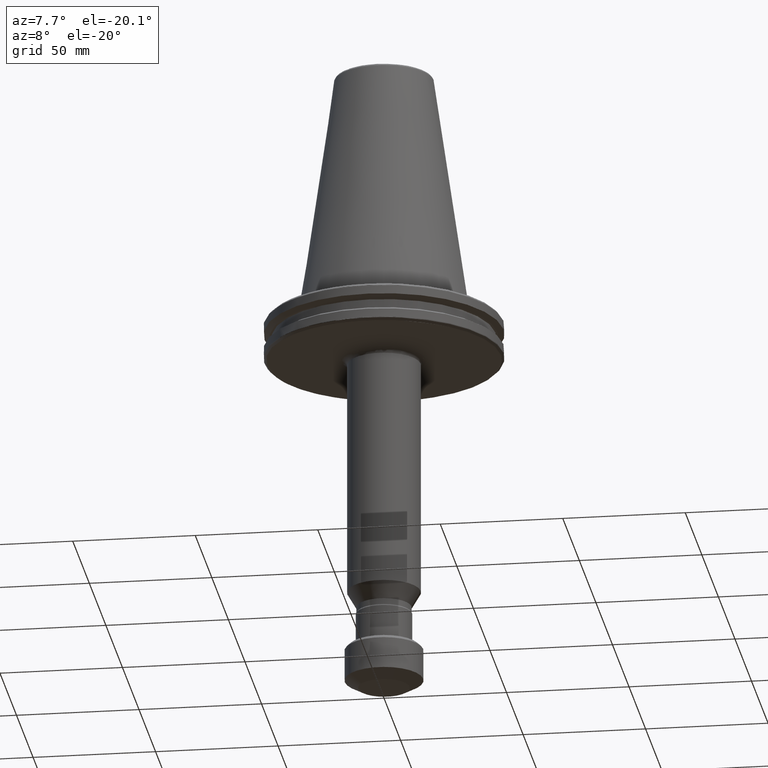
[diagram: clean part render]
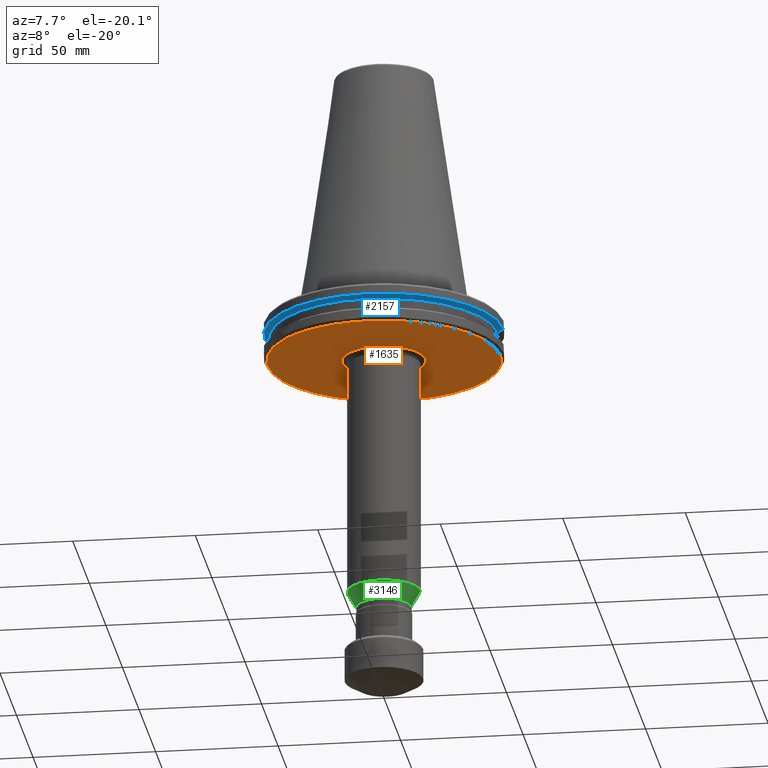
[diagram: same view with three faces highlighted in distinct colors, each labeled with its STEP entity id]
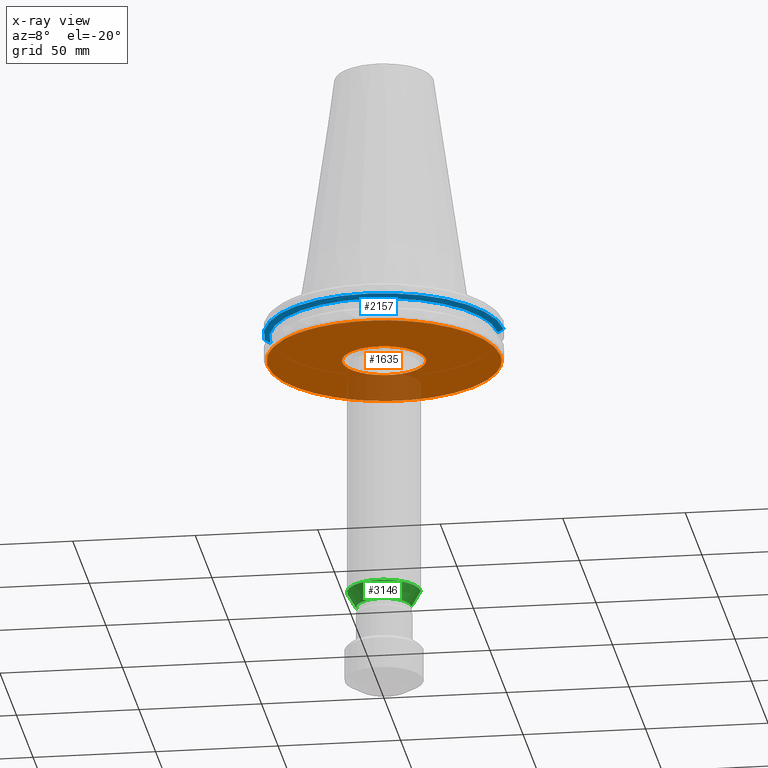
[diagram: x-ray of the same camera — body ghosted, the three highlighted faces saturated]
A machine part, auxiliary view with three faces highlighted in distinct colors.
The next image is the same camera in x-ray (body ghosted, the three faces saturated) — at least one of them is partly hidden behind the body in this view.
Their STEP definitions:

[orange] entity #1635 — the highlighted planar face has unit normal (0, 0, -1).
#3 = CARTESIAN_POINT ( 'NONE',  ( -41.01970147038476700, 24.11775541773845100, -19.10000000000000500 ) ) ;
#12 = CARTESIAN_POINT ( 'NONE',  ( -41.20373110430882200, 23.80386025136724400, -19.10000000000000500 ) ) ;
#22 = CARTESIAN_POINT ( 'NONE',  ( -41.62449277410050300, 23.06696569433342200, -19.10000000000000100 ) ) ;
#25 = EDGE_CURVE ( 'NONE', #2263, #160, #1142, .T. ) ;
#32 = CARTESIAN_POINT ( 'NONE',  ( -42.43145287622599700, 21.57528657159494000, -19.10000000000000900 ) ) ;
#35 = CARTESIAN_POINT ( 'NONE',  ( 3.125312245169779700, 16.71027959509473600, -19.10000000000000500 ) ) ;
#49 = CARTESIAN_POINT ( 'NONE',  ( 47.03992380506183200, -7.177322297440842800, -19.10000000000000900 ) ) ;
#51 = CARTESIAN_POINT ( 'NONE',  ( -15.85664712819664100, -6.129270536052382900, -19.10000000000000500 ) ) ;
#58 = CARTESIAN_POINT ( 'NONE',  ( 9.728261501599289900, 13.94273981248043800, -19.10000000000000500 ) ) ;
#59 = CARTESIAN_POINT ( 'NONE',  ( -43.06388169954853900, 20.26603588009768600, -19.10000000000000900 ) ) ;
#60 = CARTESIAN_POINT ( 'NONE',  ( 42.81655896320034300, -20.76531420089565200, -19.10000000000000500 ) ) ;
#61 = CARTESIAN_POINT ( 'NONE',  ( 3.029438918684568300, -16.72792623648391000, -19.10000000000000100 ) ) ;
#63 = CARTESIAN_POINT ( 'NONE',  ( -3.566247131329844500, -16.62276056159847900, -19.10000000000000500 ) ) ;
#69 = CARTESIAN_POINT ( 'NONE',  ( -43.48387235241227000, 19.32416758564884400, -19.10000000000000500 ) ) ;
#71 = CARTESIAN_POINT ( 'NONE',  ( 32.98419360929887000, -34.29747021916411100, -19.10000000000000500 ) ) ;
#76 = CARTESIAN_POINT ( 'NONE',  ( -6.289638318446411500, -15.79372029836369500, -19.10000000000000100 ) ) ;
#84 = CARTESIAN_POINT ( 'NONE',  ( 10.14559024918614900, 13.64631823949106800, -19.10000000000000900 ) ) ;
#87 = CARTESIAN_POINT ( 'NONE',  ( -43.50738066079203700, 19.27117675785591200, -19.10000000000000100 ) ) ;
#89 = CARTESIAN_POINT ( 'NONE',  ( 20.84251516369964500, -42.77734476561543200, -19.10000000000000100 ) ) ;
#100 = CARTESIAN_POINT ( 'NONE',  ( -43.55528312424436200, 19.16266601027835400, -19.10000000000000500 ) ) ;
#105 = CARTESIAN_POINT ( 'NONE',  ( -6.324345534790095000, -15.77985774725861400, -19.10000000000000100 ) ) ;
#108 = CARTESIAN_POINT ( 'NONE',  ( -43.62682564197403700, 18.99978398644786600, -19.10000000000000900 ) ) ;
#115 = CARTESIAN_POINT ( 'NONE',  ( -16.72245833483517800, -3.059499537038677300, -19.10000000000000500 ) ) ;
#130 = CARTESIAN_POINT ( 'NONE',  ( -38.46325200469458800, 28.02275388917199800, -19.10000000000000900 ) ) ;
#137 = VERTEX_POINT ( 'NONE', #1767 ) ;
#138 = CARTESIAN_POINT ( 'NONE',  ( -8.821883244323856800, -14.54320516734894600, -19.10000000000000900 ) ) ;
#139 = CARTESIAN_POINT ( 'NONE',  ( -43.79157994120148300, 18.61891461359454400, -19.10000000000000900 ) ) ;
#143 = CARTESIAN_POINT ( 'NONE',  ( -2.869521108641415600, 16.75629328809213400, -19.10000000000000900 ) ) ;
#148 = CARTESIAN_POINT ( 'NONE',  ( -44.11237557108923100, 17.85393059889239400, -19.10000000000000500 ) ) ;
#153 = CARTESIAN_POINT ( 'NONE',  ( -7.572712612743701200, 15.23929593934309200, -19.10000000000000500 ) ) ;
#157 = CARTESIAN_POINT ( 'NONE',  ( -44.71911495659637100, 16.31098149350621200, -19.10000000000000500 ) ) ;
#160 = VERTEX_POINT ( 'NONE', #1848 ) ;
#162 = CARTESIAN_POINT ( 'NONE',  ( -45.17943121685659200, 14.96620041577759100, -19.10000000000000100 ) ) ;
#163 = CARTESIAN_POINT ( 'NONE',  ( -14.14825376423097900, 9.425089607253818600, -19.10000000000000500 ) ) ;
#170 = CARTESIAN_POINT ( 'NONE',  ( -46.02040231047781300, 12.24696722950454800, -19.10000000000000900 ) ) ;
#174 = CARTESIAN_POINT ( 'NONE',  ( -46.47129717728591200, 10.40616371184829000, -19.10000000000001200 ) ) ;
#176 = CARTESIAN_POINT ( 'NONE',  ( -16.62276056159593600, 3.566247131336619500, -19.10000000000000500 ) ) ;
#178 = ORIENTED_EDGE ( 'NONE', *, *, #2322, .T. ) ;
#182 = CARTESIAN_POINT ( 'NONE',  ( -46.82244676818311300, 8.481092150350008300, -19.10000000000000100 ) ) ;
#193 = CARTESIAN_POINT ( 'NONE',  ( -46.83347022514247000, 8.420015231129310600, -19.09999999999999800 ) ) ;
#209 = CARTESIAN_POINT ( 'NONE',  ( -46.85478944352896500, 8.300562471110374900, -19.10000000000000500 ) ) ;
#214 = CARTESIAN_POINT ( 'NONE',  ( 25.98226908286749300, 39.86687285256100200, -19.10000000000000900 ) ) ;
#221 = CARTESIAN_POINT ( 'NONE',  ( -46.88642313584194500, 8.121342992147317500, -19.10000000000000900 ) ) ;
#224 = CARTESIAN_POINT ( 'NONE',  ( 36.56395844843798700, 30.56583245022793300, -19.10000000000000100 ) ) ;
#232 = CARTESIAN_POINT ( 'NONE',  ( -47.54727111531476400, 1.905664479506076600, -19.10000000000000500 ) ) ;
#237 = CARTESIAN_POINT ( 'NONE',  ( 45.10896982986371000, 15.14909382752228600, -19.10000000000000500 ) ) ;
#238 = CARTESIAN_POINT ( 'NONE',  ( 16.99999999999999300, 2.081899558550499900E-015, -19.10000000000000500 ) ) ;
#245 = CARTESIAN_POINT ( 'NONE',  ( -47.51085212533705300, 2.645849691387023700, -19.10000000000000500 ) ) ;
#249 = CARTESIAN_POINT ( 'NONE',  ( 47.39900545896377100, 4.849328732736453600, -19.10000000000000900 ) ) ;
#252 = CARTESIAN_POINT ( 'NONE',  ( 16.99999999999998600, 0.5198128668705058700, -19.10000000000000100 ) ) ;
#261 = CARTESIAN_POINT ( 'NONE',  ( -47.51765271231917600, 2.520872981501094800, -19.10000000000000500 ) ) ;
#263 = DIRECTION ( 'NONE',  ( 0.0000000000000000000, 0.0000000000000000000, -1.000000000000000000 ) ) ;
#265 = CARTESIAN_POINT ( 'NONE',  ( 16.75628663802398300, 2.869557051019493900, -19.09999999999999800 ) ) ;
#271 = CARTESIAN_POINT ( 'NONE',  ( -47.53007346013036000, 2.274785748777612400, -19.10000000000000500 ) ) ;
#281 = CARTESIAN_POINT ( 'NONE',  ( -47.44736947908378300, 3.735930615248189000, -19.10000000000000500 ) ) ;
#284 = CARTESIAN_POINT ( 'NONE',  ( -10.14559024918804100, -13.64631823948669600, -19.10000000000000900 ) ) ;
#296 = CARTESIAN_POINT ( 'NONE',  ( -29.16962769365437700, 37.59601427558488500, -19.10000000000000500 ) ) ;
#321 = CARTESIAN_POINT ( 'NONE',  ( 46.83576360696253000, -8.501588316288094300, -19.10000000000000500 ) ) ;
#323 = CARTESIAN_POINT ( 'NONE',  ( -16.42698948585843200, -4.437327573547517700, -19.10000000000000500 ) ) ;
#329 = CARTESIAN_POINT ( 'NONE',  ( 10.95514690496481900, 13.02276200925405500, -19.10000000000000900 ) ) ;
#332 = CARTESIAN_POINT ( 'NONE',  ( 42.45501299876879400, -21.49105359667803200, -19.10000000000000500 ) ) ;
#342 = AXIS2_PLACEMENT_3D ( 'NONE', #695, #2548, #978 ) ;
#351 = CARTESIAN_POINT ( 'NONE',  ( 30.53220719722037700, -36.53788278290467400, -19.10000000000000500 ) ) ;
#355 = CARTESIAN_POINT ( 'NONE',  ( -6.390923916827519600, -15.75301338872892400, -19.10000000000000100 ) ) ;
#363 = CARTESIAN_POINT ( 'NONE',  ( 20.48661267979564500, -42.94842543565332700, -19.10000000000000100 ) ) ;
#380 = CARTESIAN_POINT ( 'NONE',  ( -2.071280557781268100, -16.90536463866653000, -19.10000000000000900 ) ) ;
#385 = CARTESIAN_POINT ( 'NONE',  ( -46.95781913770510800, 7.702881835357628900, -19.10000000000000500 ) ) ;
#394 = ORIENTED_EDGE ( 'NONE', *, *, #2307, .F. ) ;
#398 = CARTESIAN_POINT ( 'NONE',  ( -47.09094735396286100, 6.864830031607963800, -19.10000000000000900 ) ) ;
#403 = CARTESIAN_POINT ( 'NONE',  ( -3.125312245169746800, -16.71027959509474000, -19.10000000000000900 ) ) ;
#406 = CARTESIAN_POINT ( 'NONE',  ( -47.31854863660417700, 5.184208463427548700, -19.10000000000000900 ) ) ;
#415 = CARTESIAN_POINT ( 'NONE',  ( -36.93598507658065000, -30.00000000000000000, -19.10000000000000500 ) ) ;
#416 = CARTESIAN_POINT ( 'NONE',  ( -32.75192744829205800, 34.53355234437026400, -19.10000000000000500 ) ) ;
#424 = CARTESIAN_POINT ( 'NONE',  ( -3.029438918683411000, 16.72792623648391000, -19.10000000000000100 ) ) ;
#427 = CARTESIAN_POINT ( 'NONE',  ( 2.965481552295660800, -16.73938395791544700, -19.10000000000000500 ) ) ;
#432 = CARTESIAN_POINT ( 'NONE',  ( -19.66864681414563900, 43.33030693681833900, -19.10000000000000100 ) ) ;
#438 = CARTESIAN_POINT ( 'NONE',  ( -20.43954638190528100, 42.97566936951365300, -19.09999999999999800 ) ) ;
#439 = CARTESIAN_POINT ( 'NONE',  ( -8.878797069429674900, 14.49842495587518200, -19.10000000000000500 ) ) ;
#442 = CARTESIAN_POINT ( 'NONE',  ( 1.296190649269234600, -16.96455228150933400, -19.10000000000000500 ) ) ;
#443 = CARTESIAN_POINT ( 'NONE',  ( -21.96363841714560600, 42.23173747250665900, -19.10000000000000100 ) ) ;
#447 = EDGE_CURVE ( 'NONE', #2177, #137, #2582, .T. ) ;
#448 = CARTESIAN_POINT ( 'NONE',  ( 15.61568138957270000, -6.722192561594880500, -19.10000000000000500 ) ) ;
#449 = CARTESIAN_POINT ( 'NONE',  ( -14.54320516735298700, 8.821883244313159600, -19.10000000000000900 ) ) ;
#452 = CARTESIAN_POINT ( 'NONE',  ( 0.5197252359391022500, -17.00001621349949200, -19.10000000000000500 ) ) ;
#455 = CARTESIAN_POINT ( 'NONE',  ( 15.41372478594150200, -7.180910359809975500, -19.10000000000000500 ) ) ;
#457 = CARTESIAN_POINT ( 'NONE',  ( 2.071280557780420800, 16.90536463866652600, -19.10000000000000900 ) ) ;
#460 = CARTESIAN_POINT ( 'NONE',  ( 14.97610095325129400, -8.080751853756281000, -19.10000000000000100 ) ) ;
#462 = CARTESIAN_POINT ( 'NONE',  ( -16.69059809660610900, 3.228799669476927600, -19.10000000000000100 ) ) ;
#469 = CARTESIAN_POINT ( 'NONE',  ( 6.390923916823730600, 15.75301338873083900, -19.10000000000000100 ) ) ;
#480 = CARTESIAN_POINT ( 'NONE',  ( -16.99999999999999300, 0.0000000000000000000, -19.10000000000000500 ) ) ;
#486 = ORIENTED_EDGE ( 'NONE', *, *, #707, .F. ) ;
#492 = CARTESIAN_POINT ( 'NONE',  ( 16.43872634143109600, 44.68369591765152600, -19.10000000000000900 ) ) ;
#496 = CIRCLE ( 'NONE', #975, 47.58431457505076200 ) ;
#501 = CARTESIAN_POINT ( 'NONE',  ( 26.63902506835220400, 39.42887053636794500, -19.10000000000000100 ) ) ;
#513 = CARTESIAN_POINT ( 'NONE',  ( 40.03666779854415800, 25.77557849496801600, -19.10000000000000500 ) ) ;
#527 = CARTESIAN_POINT ( 'NONE',  ( 45.23605185880558800, 14.76391406656701100, -19.10000000000000900 ) ) ;
#536 = CARTESIAN_POINT ( 'NONE',  ( 47.58431457505076200, 0.0000000000000000000, -19.10000000000000500 ) ) ;
#543 = CARTESIAN_POINT ( 'NONE',  ( 15.77985774725934600, -6.324345534788302600, -19.10000000000000500 ) ) ;
#570 = CARTESIAN_POINT ( 'NONE',  ( 15.75301338873035000, -6.390923916824021100, -19.10000000000000500 ) ) ;
#572 = CARTESIAN_POINT ( 'NONE',  ( 4.437327573572539500, -16.42698948584730100, -19.10000000000000500 ) ) ;
#581 = CARTESIAN_POINT ( 'NONE',  ( 15.71244586320982800, -6.490634399676851600, -19.10000000000000500 ) ) ;
#591 = CARTESIAN_POINT ( 'NONE',  ( -38.02059330658858000, 28.61405399306253000, -19.10000000000000100 ) ) ;
#604 = CARTESIAN_POINT ( 'NONE',  ( 11.60602259952644400, 12.43563423889389200, -19.10000000000000500 ) ) ;
#607 = CARTESIAN_POINT ( 'NONE',  ( 45.92256546688791000, -12.49385015583332100, -19.10000000000000500 ) ) ;
#619 = CARTESIAN_POINT ( 'NONE',  ( 12.85040064146102300, 11.19117736272612100, -19.10000000000000500 ) ) ;
#621 = CARTESIAN_POINT ( 'NONE',  ( 41.10236839390098100, -24.12040806554618700, -19.10000000000000500 ) ) ;
#631 = CARTESIAN_POINT ( 'NONE',  ( 27.83019210807080400, -38.59969460726077300, -19.10000000000000500 ) ) ;
#640 = CARTESIAN_POINT ( 'NONE',  ( 20.37821948653847300, -42.99996010883735000, -19.10000000000000500 ) ) ;
#642 = CARTESIAN_POINT ( 'NONE',  ( 6.224235666764239600, -15.81961256450014200, -19.10000000000000500 ) ) ;
#645 = EDGE_LOOP ( 'NONE', ( #2712, #2592 ) ) ;
#657 = CARTESIAN_POINT ( 'NONE',  ( -40.89619211354354200, 24.32659290939851400, -19.10000000000000500 ) ) ;
#663 = CARTESIAN_POINT ( 'NONE',  ( 9.061033282946466400, -14.38413214245379700, -19.10000000000000500 ) ) ;
#671 = CARTESIAN_POINT ( 'NONE',  ( 9.182110065267670200, -14.30713178097843400, -19.10000000000000900 ) ) ;
#675 = CARTESIAN_POINT ( 'NONE',  ( 3.330217505461401400, 16.67087759191217000, -19.10000000000000500 ) ) ;
#688 = CARTESIAN_POINT ( 'NONE',  ( -19.28098364273093800, 43.50329362517094700, -19.10000000000000100 ) ) ;
#695 = CARTESIAN_POINT ( 'NONE',  ( 0.0000000000000000000, 0.0000000000000000000, -19.10000000000000500 ) ) ;
#701 = CARTESIAN_POINT ( 'NONE',  ( 13.58694172185946100, 10.28458922964562700, -19.10000000000000500 ) ) ;
#707 = EDGE_CURVE ( 'NONE', #2177, #2478, #2667, .T. ) ;
#708 = CARTESIAN_POINT ( 'NONE',  ( -3.635329554514934400, 16.61591811502073300, -19.10000000000000500 ) ) ;
#712 = CARTESIAN_POINT ( 'NONE',  ( -44.66341859276445800, -16.42788878458392400, -19.10000000000000100 ) ) ;
#717 = CARTESIAN_POINT ( 'NONE',  ( -40.26320961463839200, 25.37939330416776700, -19.10000000000000500 ) ) ;
#718 = CARTESIAN_POINT ( 'NONE',  ( -9.182110065269716500, 14.30713178097664700, -19.10000000000001200 ) ) ;
#723 = CARTESIAN_POINT ( 'NONE',  ( -44.05225042106332700, -18.03808220042951800, -19.10000000000000100 ) ) ;
#728 = CARTESIAN_POINT ( 'NONE',  ( -46.34068544058068500, -10.98879899736819400, -19.10000000000000500 ) ) ;
#731 = CARTESIAN_POINT ( 'NONE',  ( -15.41372478593898900, 7.180910359815040800, -19.10000000000000500 ) ) ;
#746 = CARTESIAN_POINT ( 'NONE',  ( -16.71027858106262800, 3.125317723918133300, -19.10000000000000500 ) ) ;
#748 = EDGE_LOOP ( 'NONE', ( #2678, #178, #3414, #394, #2756, #486, #1004 ) ) ;
#749 = CARTESIAN_POINT ( 'NONE',  ( -9.362651127950361000, -14.18963850613807600, -19.09999999999999800 ) ) ;
#762 = CARTESIAN_POINT ( 'NONE',  ( -15.36949559229631400, 45.07380940895438900, -19.10000000000000900 ) ) ;
#768 = CARTESIAN_POINT ( 'NONE',  ( 19.37845221096031200, 43.46156447275974000, -19.10000000000000500 ) ) ;
#782 = CARTESIAN_POINT ( 'NONE',  ( 26.83329560689674800, 39.29691769201963300, -19.10000000000000500 ) ) ;
#798 = CARTESIAN_POINT ( 'NONE',  ( 41.76982192484548800, 22.79788105297959100, -19.10000000000000500 ) ) ;
#800 = CARTESIAN_POINT ( 'NONE',  ( 16.73938006287553600, 2.965502604257704200, -19.10000000000000900 ) ) ;
#810 = CARTESIAN_POINT ( 'NONE',  ( 45.67414891458736300, 13.40663716822575300, -19.10000000000000500 ) ) ;
#844 = CARTESIAN_POINT ( 'NONE',  ( -46.90680541814642600, -8.062666715387075900, -19.10000000000000100 ) ) ;
#853 = CARTESIAN_POINT ( 'NONE',  ( 16.71027858106262800, -3.125317723918104900, -19.10000000000000100 ) ) ;
#886 = CARTESIAN_POINT ( 'NONE',  ( 14.26904756377067000, 9.241189343666276200, -19.10000000000000500 ) ) ;
#887 = CARTESIAN_POINT ( 'NONE',  ( -43.46452045534637400, -19.39265620144906800, -19.10000000000000100 ) ) ;
#888 = CARTESIAN_POINT ( 'NONE',  ( 45.45322280364973000, -14.08247786513390800, -19.10000000000000900 ) ) ;
#895 = CARTESIAN_POINT ( 'NONE',  ( 13.54999999999998800, 45.61430141498812700, -19.10000000000000500 ) ) ;
#900 = CARTESIAN_POINT ( 'NONE',  ( 37.35106965272741100, -29.51098510196290900, -19.10000000000000100 ) ) ;
#917 = CARTESIAN_POINT ( 'NONE',  ( 27.16737028582480600, -39.06671061190463900, -19.10000000000000900 ) ) ;
#930 = CARTESIAN_POINT ( 'NONE',  ( 14.30713178097726300, 9.182110065269576200, -19.10000000000000900 ) ) ;
#934 = CARTESIAN_POINT ( 'NONE',  ( 15.88117119200014000, -44.92181312355893400, -19.10000000000001200 ) ) ;
#941 = CARTESIAN_POINT ( 'NONE',  ( -45.14766936920374000, -15.03384098515627600, -19.10000000000000500 ) ) ;
#949 = CARTESIAN_POINT ( 'NONE',  ( -14.75665408571024500, -8.449231957572143500, -19.10000000000000500 ) ) ;
#975 = AXIS2_PLACEMENT_3D ( 'NONE', #1040, #2868, #1315 ) ;
#978 = DIRECTION ( 'NONE',  ( 1.000000000000000000, 0.0000000000000000000, 0.0000000000000000000 ) ) ;
#982 = CARTESIAN_POINT ( 'NONE',  ( -47.40564946811701200, -4.127351685573135100, -19.10000000000000500 ) ) ;
#987 = CARTESIAN_POINT ( 'NONE',  ( -5.353849595847091100, 16.13916466441873300, -19.10000000000000500 ) ) ;
#993 = CARTESIAN_POINT ( 'NONE',  ( 14.38413214245157000, 9.061033282950091900, -19.10000000000000500 ) ) ;
#994 = CARTESIAN_POINT ( 'NONE',  ( 4.965289126045987300, 16.27518783772484300, -19.10000000000000100 ) ) ;
#1003 = CARTESIAN_POINT ( 'NONE',  ( -10.28458922963834800, 13.58694172186863000, -19.10000000000000500 ) ) ;
#1004 = ORIENTED_EDGE ( 'NONE', *, *, #447, .T. ) ;
#1007 = CARTESIAN_POINT ( 'NONE',  ( -9.425089607255269900, -14.14825376422930600, -19.10000000000000500 ) ) ;
#1012 = CARTESIAN_POINT ( 'NONE',  ( -37.57277125776277400, 29.19957678202585400, -19.10000000000000900 ) ) ;
#1013 = CARTESIAN_POINT ( 'NONE',  ( -47.44611172680946300, -3.632546062329448800, -19.10000000000000900 ) ) ;
#1016 = CARTESIAN_POINT ( 'NONE',  ( -15.71244586320904800, 6.490634399678438800, -19.10000000000000500 ) ) ;
#1019 = CARTESIAN_POINT ( 'NONE',  ( -47.46455135935458000, -3.382873549509048900, -19.10000000000000500 ) ) ;
#1025 = CARTESIAN_POINT ( 'NONE',  ( -17.00000000000000000, 1.039981274164162800, -19.10000000000000900 ) ) ;
#1034 = CARTESIAN_POINT ( 'NONE',  ( -47.33918203676742600, -4.868797594412217900, -19.10000000000000900 ) ) ;
#1040 = CARTESIAN_POINT ( 'NONE',  ( 0.0000000000000000000, 0.0000000000000000000, -19.10000000000000500 ) ) ;
#1050 = CARTESIAN_POINT ( 'NONE',  ( -45.84282519674828600, -12.90938794945801100, -19.10000000000000500 ) ) ;
#1055 = CARTESIAN_POINT ( 'NONE',  ( 20.10319798187022000, 43.12932423442686800, -19.10000000000000500 ) ) ;
#1064 = CARTESIAN_POINT ( 'NONE',  ( 29.52749904793566000, 37.35450850861830900, -19.10000000000000500 ) ) ;
#1071 = CARTESIAN_POINT ( 'NONE',  ( 16.70354485979802200, -3.161129493916195400, -19.10000000000000500 ) ) ;
#1076 = CARTESIAN_POINT ( 'NONE',  ( 42.15563262228516800, 22.07208034065583700, -19.10000000000000900 ) ) ;
#1089 = CARTESIAN_POINT ( 'NONE',  ( 46.64842286614431500, 9.428839320875924900, -19.10000000000000500 ) ) ;
#1093 = CARTESIAN_POINT ( 'NONE',  ( 16.79379521458284000, 2.645509740757114000, -19.10000000000000900 ) ) ;
#1102 = CARTESIAN_POINT ( 'NONE',  ( -47.14367306044200500, -6.593500366184951400, -19.10000000000000900 ) ) ;
#1107 = CARTESIAN_POINT ( 'NONE',  ( 16.86105197255044900, 2.196717709406117900, -19.10000000000000500 ) ) ;
#1142 = B_SPLINE_CURVE_WITH_KNOTS ( 'NONE', 3,
 ( #480, #2833, #1289, #3317, #2234, #1810, #1802, #1794, #115, #1973, #323, #1782, #3238, #1720, #51, #1561, #1545, #3058, #1990, #949, #1531, #1737, #1588, #3289, #3064, #2750, #1754, #1940, #284, #2196, #1482, #1007, #749, #138, #2360, #2961, #1600, #3382, #355, #105, #76, #1977, #1774, #1764, #63, #1518, #1502, #1845, #403, #380, #1576, #452, #442, #2069, #2057, #2048, #427, #61, #1987, #2230, #572, #2440, #1733, #2089, #2244, #2256, #642, #2268, #3307, #1385, #1180, #663, #671, #2039, #2031, #1551, #1625, #1610, #3280, #3215, #1523, #2092, #2081, #2074, #460, #455, #448, #581, #570, #543, #3431, #3050, #3087, #2308, #2697, #2686, #1683, #1071, #853, #1161, #1151, #2470 ),
 .UNSPECIFIED., .F., .F.,
 ( 4, 1, 1, 1, 1, 2, 2, 1, 1, 1, 1, 2, 2, 1, 1, 1, 2, 2, 2, 1, 1, 1, 2, 2, 1, 1, 1, 1, 2, 2, 1, 1, 1, 1, 2, 2, 2, 1, 1, 1, 1, 2, 2, 1, 1, 1, 1, 2, 2, 1, 1, 1, 2, 2, 2, 1, 1, 1, 2, 2, 1, 1, 1, 1, 2, 2, 1, 1, 1, 1, 2, 2, 4 ),
 ( 0.0000000000000000000, 0.03125000000000028400, 0.04687500000000044400, 0.05468750000000052000, 0.05859375000000056900, 0.06054687500000057600, 0.06250000000000059700, 0.09375000000000094400, 0.1093750000000010800, 0.1171875000000011800, 0.1210937500000012600, 0.1230468750000013000, 0.1250000000000013300, 0.1562500000000014700, 0.1718750000000015500, 0.1796875000000016100, 0.1835937500000016400, 0.1875000000000016700, 0.2500000000000017800, 0.2812500000000018300, 0.2968750000000018300, 0.3046875000000018300, 0.3085937500000018900, 0.3125000000000018900, 0.3437500000000020500, 0.3593750000000022200, 0.3671875000000022800, 0.3710937500000023300, 0.3730468750000023300, 0.3750000000000023300, 0.4062500000000026100, 0.4218750000000026600, 0.4296875000000027200, 0.4335937500000027200, 0.4355468750000027200, 0.4375000000000027800, 0.5000000000000035500, 0.5312500000000040000, 0.5468750000000042200, 0.5546875000000043300, 0.5585937500000044400, 0.5605468750000044400, 0.5625000000000044400, 0.5937500000000050000, 0.6093750000000052200, 0.6171875000000054400, 0.6210937500000054400, 0.6230468750000054400, 0.6250000000000054400, 0.6562500000000051100, 0.6718750000000048800, 0.6796875000000047700, 0.6835937500000045500, 0.6875000000000043300, 0.7500000000000024400, 0.7812500000000015500, 0.7968750000000010000, 0.8046875000000007800, 0.8085937500000006700, 0.8125000000000006700, 0.8437499999999991100, 0.8593749999999983300, 0.8671874999999980000, 0.8710937499999978900, 0.8730468749999980000, 0.8749999999999980000, 0.9062499999999982200, 0.9218749999999984500, 0.9296874999999984500, 0.9335937499999985600, 0.9355468749999985600, 0.9374999999999985600, 1.000000000000000000 ),
 .UNSPECIFIED. ) ;
#1145 = CARTESIAN_POINT ( 'NONE',  ( -19.43491397800986700, -43.54702447246982900, -19.10000000000000500 ) ) ;
#1151 = CARTESIAN_POINT ( 'NONE',  ( 16.99999999999999600, -1.039981274165046500, -19.10000000000001200 ) ) ;
#1152 = CARTESIAN_POINT ( 'NONE',  ( 47.31214181079801100, -5.146351426657937500, -19.10000000000000500 ) ) ;
#1161 = CARTESIAN_POINT ( 'NONE',  ( 16.90539708769391700, -2.071105237833853300, -19.10000000000000900 ) ) ;
#1162 = CARTESIAN_POINT ( 'NONE',  ( 45.33440982915567500, -14.45906218181544600, -19.10000000000000900 ) ) ;
#1175 = CARTESIAN_POINT ( 'NONE',  ( 14.49842495587713900, 8.878797069429222000, -19.10000000000000500 ) ) ;
#1176 = CARTESIAN_POINT ( 'NONE',  ( -47.57736471168503600, 1.044448576568299100, -19.10000000000000100 ) ) ;
#1178 = CARTESIAN_POINT ( 'NONE',  ( 34.55314944077223800, -32.72796038945971700, -19.10000000000000900 ) ) ;
#1180 = CARTESIAN_POINT ( 'NONE',  ( 8.878797069423201900, -14.49842495588084500, -19.10000000000000500 ) ) ;
#1191 = CARTESIAN_POINT ( 'NONE',  ( 26.96538805818462900, -39.20638976705435400, -19.09999999999999800 ) ) ;
#1199 = CARTESIAN_POINT ( 'NONE',  ( 14.75665408570223200, 8.449231957589029600, -19.10000000000000500 ) ) ;
#1224 = CARTESIAN_POINT ( 'NONE',  ( 3.566247131323481600, 16.62276056159972300, -19.10000000000000900 ) ) ;
#1240 = CARTESIAN_POINT ( 'NONE',  ( 4.035858417269072800, 16.51811642354622500, -19.10000000000000500 ) ) ;
#1247 = CARTESIAN_POINT ( 'NONE',  ( 1.039450471859349400, 16.99996757300099000, -19.10000000000000500 ) ) ;
#1257 = CARTESIAN_POINT ( 'NONE',  ( -6.032866341708736300, 15.89380501011273400, -19.10000000000000500 ) ) ;
#1269 = CARTESIAN_POINT ( 'NONE',  ( 47.58431457505076200, 0.0000000000000000000, -19.10000000000000500 ) ) ;
#1270 = CARTESIAN_POINT ( 'NONE',  ( -12.43563423889748000, 11.60602259952190500, -19.10000000000000100 ) ) ;
#1276 = CARTESIAN_POINT ( 'NONE',  ( -16.99999999999999300, 0.0000000000000000000, -19.10000000000000500 ) ) ;
#1278 = VERTEX_POINT ( 'NONE', #1776 ) ;
#1285 = CARTESIAN_POINT ( 'NONE',  ( -24.81728438535770200, 40.60144016360286700, -19.10000000000000500 ) ) ;
#1287 = CARTESIAN_POINT ( 'NONE',  ( -15.77985774725911300, 6.324345534788788500, -19.10000000000000900 ) ) ;
#1289 = CARTESIAN_POINT ( 'NONE',  ( -16.96452390788521600, -1.296344003382593500, -19.10000000000000900 ) ) ;
#1292 = CARTESIAN_POINT ( 'NONE',  ( -40.21699599931429200, -25.43351805060127200, -19.10000000000000500 ) ) ;
#1296 = CARTESIAN_POINT ( 'NONE',  ( -42.83533062587959300, -20.72236678761822000, -19.10000000000000500 ) ) ;
#1315 = DIRECTION ( 'NONE',  ( 1.000000000000000000, 0.0000000000000000000, 0.0000000000000000000 ) ) ;
#1322 = CARTESIAN_POINT ( 'NONE',  ( -42.67646432315839200, -21.04971763840258300, -19.10000000000000500 ) ) ;
#1326 = CARTESIAN_POINT ( 'NONE',  ( 20.27515829118293000, 43.04865088727923700, -19.10000000000000500 ) ) ;
#1336 = CARTESIAN_POINT ( 'NONE',  ( -42.29725858578353100, -21.80883355824718700, -19.10000000000000100 ) ) ;
#1341 = CARTESIAN_POINT ( 'NONE',  ( 32.09796523342571100, 35.13085002080209300, -19.10000000000000900 ) ) ;
#1354 = CARTESIAN_POINT ( 'NONE',  ( 42.27004183452611100, 21.85216361822372400, -19.10000000000000500 ) ) ;
#1365 = CARTESIAN_POINT ( 'NONE',  ( 46.94140912372719000, 7.798446834111087100, -19.10000000000000500 ) ) ;
#1366 = AXIS2_PLACEMENT_3D ( 'NONE', #3183, #263, #2666 ) ;
#1374 = CARTESIAN_POINT ( 'NONE',  ( -24.28919228007056200, 40.91842199131559000, -19.10000000000000900 ) ) ;
#1382 = CARTESIAN_POINT ( 'NONE',  ( -31.66160600815241100, 35.54634807814719700, -19.10000000000000900 ) ) ;
#1385 = CARTESIAN_POINT ( 'NONE',  ( 8.449231957578710700, -14.75665408570860000, -19.10000000000000900 ) ) ;
#1405 = CARTESIAN_POINT ( 'NONE',  ( -40.76709873707626700, -24.56122508930476300, -19.10000000000000500 ) ) ;
#1409 = CARTESIAN_POINT ( 'NONE',  ( -13.55000000000005800, -45.61430141498812000, -19.10000000000000500 ) ) ;
#1424 = CARTESIAN_POINT ( 'NONE',  ( -27.57030031738704800, -38.90942616194120500, -19.10000000000000500 ) ) ;
#1432 = CARTESIAN_POINT ( 'NONE',  ( 47.10692644200636200, -6.726488513088854800, -19.10000000000000500 ) ) ;
#1443 = CARTESIAN_POINT ( 'NONE',  ( 15.23929593934755800, 7.572712612742651400, -19.10000000000000500 ) ) ;
#1444 = CARTESIAN_POINT ( 'NONE',  ( 44.88749798163672700, -15.84507372803941800, -19.10000000000000100 ) ) ;
#1450 = CARTESIAN_POINT ( 'NONE',  ( -29.36703163552334700, 37.44204003263404000, -19.10000000000000100 ) ) ;
#1452 = CARTESIAN_POINT ( 'NONE',  ( 33.33919882941675200, -33.95310552512570000, -19.10000000000000500 ) ) ;
#1459 = CARTESIAN_POINT ( 'NONE',  ( 9.425089607254920000, 14.14825376423011100, -19.10000000000000500 ) ) ;
#1463 = CARTESIAN_POINT ( 'NONE',  ( 24.25619299493327900, -40.97211381925414000, -19.10000000000000100 ) ) ;
#1476 = CARTESIAN_POINT ( 'NONE',  ( 15.59501797503518500, 6.791600395161189000, -19.10000000000000500 ) ) ;
#1482 = CARTESIAN_POINT ( 'NONE',  ( -9.546716948413260800, -14.06648694187525100, -19.10000000000000100 ) ) ;
#1502 = CARTESIAN_POINT ( 'NONE',  ( -3.228799669474799100, -16.69059809660690500, -19.10000000000000500 ) ) ;
#1513 = EDGE_CURVE ( 'NONE', #160, #2263, #2972, .T. ) ;
#1518 = CARTESIAN_POINT ( 'NONE',  ( -3.330217505464807100, -16.67087759191150600, -19.10000000000000100 ) ) ;
#1523 = CARTESIAN_POINT ( 'NONE',  ( 14.06648694187845400, -9.546716948410926700, -19.09999999999999800 ) ) ;
#1528 = CARTESIAN_POINT ( 'NONE',  ( -1.296190649252732000, 16.96455228150932700, -19.10000000000000100 ) ) ;
#1531 = CARTESIAN_POINT ( 'NONE',  ( -14.49842495588180200, -8.878797069419368500, -19.10000000000000500 ) ) ;
#1534 = CARTESIAN_POINT ( 'NONE',  ( -29.75607469812041800, 37.13363235652121100, -19.10000000000000900 ) ) ;
#1541 = CARTESIAN_POINT ( 'NONE',  ( 13.54999999999997600, -45.61430141498813400, -19.10000000000000500 ) ) ;
#1542 = CARTESIAN_POINT ( 'NONE',  ( -6.193483027727598500, 15.83167458760900300, -19.10000000000000500 ) ) ;
#1545 = CARTESIAN_POINT ( 'NONE',  ( -15.81961256450006200, -6.224235666764554900, -19.10000000000000500 ) ) ;
#1550 = CARTESIAN_POINT ( 'NONE',  ( 6.324345534788160500, 15.77985774725959600, -19.10000000000000500 ) ) ;
#1551 = CARTESIAN_POINT ( 'NONE',  ( 11.19117736271890200, -12.85040064146824100, -19.10000000000000900 ) ) ;
#1558 = CARTESIAN_POINT ( 'NONE',  ( -13.64631823949578000, 10.14559024918019500, -19.10000000000000500 ) ) ;
#1561 = CARTESIAN_POINT ( 'NONE',  ( -15.83167458760978100, -6.193483027724647100, -19.09999999999999800 ) ) ;
#1565 = CARTESIAN_POINT ( 'NONE',  ( -39.46301787735756500, 26.62035680901343000, -19.10000000000000900 ) ) ;
#1573 = CARTESIAN_POINT ( 'NONE',  ( -16.00929423321979100, 5.745157968247462500, -19.10000000000000100 ) ) ;
#1576 = CARTESIAN_POINT ( 'NONE',  ( -1.039450471878208500, -16.99996757300099400, -19.10000000000000900 ) ) ;
#1580 = CARTESIAN_POINT ( 'NONE',  ( 15.81961256450044000, 6.224235666763752000, -19.10000000000000500 ) ) ;
#1588 = CARTESIAN_POINT ( 'NONE',  ( -14.30713178097873600, -9.182110065266462200, -19.10000000000000900 ) ) ;
#1600 = CARTESIAN_POINT ( 'NONE',  ( -6.722192561606024500, -15.61568138956814300, -19.10000000000000500 ) ) ;
#1601 = CARTESIAN_POINT ( 'NONE',  ( 14.71542401579883800, 45.26810526763497900, -19.10000000000000900 ) ) ;
#1610 = CARTESIAN_POINT ( 'NONE',  ( 13.02276200926036700, -10.95514690495850000, -19.10000000000000500 ) ) ;
#1615 = CARTESIAN_POINT ( 'NONE',  ( 21.48646288113934600, 42.47584807163104200, -19.10000000000000100 ) ) ;
#1625 = CARTESIAN_POINT ( 'NONE',  ( 12.43563423889749800, -11.60602259952283400, -19.10000000000000100 ) ) ;
#1629 = CARTESIAN_POINT ( 'NONE',  ( 32.69070567705438200, 34.57761234898727300, -19.10000000000000500 ) ) ;
#1635 = ADVANCED_FACE ( 'NONE', ( #3444, #3150 ), #2423, .T. ) ;
#1639 = CARTESIAN_POINT ( 'NONE',  ( 43.71947824451244500, 18.86371587510558400, -19.10000000000000100 ) ) ;
#1648 = CARTESIAN_POINT ( 'NONE',  ( 47.00406100007005300, 7.408562343369019300, -19.10000000000000100 ) ) ;
#1669 = CARTESIAN_POINT ( 'NONE',  ( 16.96452390788521600, 1.296344003399192000, -19.10000000000000500 ) ) ;
#1683 = CARTESIAN_POINT ( 'NONE',  ( 16.69059809660615600, -3.228799669476601700, -19.10000000000000500 ) ) ;
#1687 = B_SPLINE_CURVE_WITH_KNOTS ( 'NONE', 3,
 ( #1707, #1960, #2709, #1152, #2986, #1432, #3236, #1719, #49, #1971, #321, #2229, #607, #2471, #888, #2723, #1162, #2997, #1444, #3252, #1731, #60, #1984, #332, #2241, #621, #2480, #900, #2735, #1178, #3007, #1452, #3261, #1747, #71, #1998, #351, #2252, #631, #2494, #917, #2746, #1191, #3025, #1463, #3269, #1761, #89, #2011, #363, #2266, #640, #2504, #934, #2760 ),
 .UNSPECIFIED., .F., .F.,
 ( 4, 1, 1, 1, 1, 1, 2, 2, 1, 1, 1, 1, 2, 2, 1, 1, 1, 2, 2, 2, 1, 1, 1, 1, 2, 2, 1, 1, 1, 1, 2, 2, 1, 1, 1, 1, 1, 2, 2, 4 ),
 ( 0.0000000000000000000, 0.06250000000000127700, 0.09375000000000197100, 0.1093750000000023200, 0.1171875000000025100, 0.1210937500000026000, 0.1230468750000026200, 0.1250000000000026400, 0.1875000000000029700, 0.2187500000000031400, 0.2343750000000032200, 0.2421875000000033000, 0.2460937500000033000, 0.2500000000000032800, 0.3125000000000034400, 0.3437500000000035500, 0.3593750000000036100, 0.3671875000000036600, 0.3750000000000037200, 0.5000000000000026600, 0.5625000000000022200, 0.5937500000000020000, 0.6093750000000020000, 0.6171875000000018900, 0.6210937500000017800, 0.6250000000000017800, 0.6874999999999991100, 0.7187499999999977800, 0.7343749999999971100, 0.7421874999999968900, 0.7460937499999966700, 0.7499999999999965600, 0.8124999999999922300, 0.8437499999999901200, 0.8593749999999890100, 0.8671874999999885600, 0.8710937499999883400, 0.8730468749999884500, 0.8749999999999884500, 1.000000000000000000 ),
 .UNSPECIFIED. ) ;
#1707 = CARTESIAN_POINT ( 'NONE',  ( 47.58431457505076200, 0.0000000000000000000, -19.10000000000000500 ) ) ;
#1716 = CARTESIAN_POINT ( 'NONE',  ( 15.83167458760924300, 6.193483027726301800, -19.10000000000000500 ) ) ;
#1719 = CARTESIAN_POINT ( 'NONE',  ( 47.05132465888359400, -7.102201038421344300, -19.10000000000000500 ) ) ;
#1720 = CARTESIAN_POINT ( 'NONE',  ( -15.89380501011531900, -6.032866341698900600, -19.10000000000000500 ) ) ;
#1729 = CARTESIAN_POINT ( 'NONE',  ( 15.85664712819559900, 6.129270536055610600, -19.10000000000000500 ) ) ;
#1731 = CARTESIAN_POINT ( 'NONE',  ( 43.30452027736831900, -19.74175216915723000, -19.10000000000000500 ) ) ;
#1733 = CARTESIAN_POINT ( 'NONE',  ( 5.807325023636170000, -15.97840023185606900, -19.10000000000000500 ) ) ;
#1737 = CARTESIAN_POINT ( 'NONE',  ( -14.38413214245438400, -9.061033282944160700, -19.10000000000000500 ) ) ;
#1747 = CARTESIAN_POINT ( 'NONE',  ( 33.04425963289338600, -34.23960624551640600, -19.10000000000000500 ) ) ;
#1754 = CARTESIAN_POINT ( 'NONE',  ( -11.60602259952788300, -12.43563423889056300, -19.10000000000001200 ) ) ;
#1758 = CARTESIAN_POINT ( 'NONE',  ( 7.180910359808336800, 15.41372478594418300, -19.10000000000000900 ) ) ;
#1761 = CARTESIAN_POINT ( 'NONE',  ( 21.33841271917692900, -42.53372818159881100, -19.10000000000000500 ) ) ;
#1763 = EDGE_CURVE ( 'NONE', #3340, #3331, #1687, .T. ) ;
#1764 = CARTESIAN_POINT ( 'NONE',  ( -4.035858417279985800, -16.51811642354409300, -19.10000000000000900 ) ) ;
#1767 = CARTESIAN_POINT ( 'NONE',  ( -13.54999999999997100, 45.61430141498814100, -19.10000000000000500 ) ) ;
#1774 = CARTESIAN_POINT ( 'NONE',  ( -4.965289126060540100, -16.27518783772201200, -19.10000000000000500 ) ) ;
#1776 = CARTESIAN_POINT ( 'NONE',  ( -13.55000000000005800, -45.61430141498812000, -19.10000000000000500 ) ) ;
#1782 = CARTESIAN_POINT ( 'NONE',  ( -16.13916466442699600, -5.353849595815630900, -19.10000000000000100 ) ) ;
#1794 = CARTESIAN_POINT ( 'NONE',  ( -16.72792424146346900, -3.029449701395666500, -19.10000000000000900 ) ) ;
#1796 = CARTESIAN_POINT ( 'NONE',  ( -36.19195205117013400, 30.95738241480026400, -19.10000000000000500 ) ) ;
#1802 = CARTESIAN_POINT ( 'NONE',  ( -16.73938006287552900, -2.965502604255420700, -19.10000000000000500 ) ) ;
#1803 = CARTESIAN_POINT ( 'NONE',  ( 15.89380501011353500, 6.032866341704413500, -19.10000000000000500 ) ) ;
#1807 = CARTESIAN_POINT ( 'NONE',  ( -2.645442648318031300, 16.79380762804338900, -19.10000000000000900 ) ) ;
#1810 = CARTESIAN_POINT ( 'NONE',  ( -16.75628663802399000, -2.869557051015599700, -19.10000000000000500 ) ) ;
#1818 = CARTESIAN_POINT ( 'NONE',  ( -23.23964798973045000, 41.53466996810465900, -19.10000000000000500 ) ) ;
#1820 = CARTESIAN_POINT ( 'NONE',  ( -6.791600395161791100, 15.59501797503262900, -19.10000000000000900 ) ) ;
#1834 = CARTESIAN_POINT ( 'NONE',  ( -14.06648694187844500, 9.546716948410505700, -19.10000000000000500 ) ) ;
#1842 = CARTESIAN_POINT ( 'NONE',  ( -16.51811642353974800, 4.035858417291598800, -19.10000000000000500 ) ) ;
#1845 = CARTESIAN_POINT ( 'NONE',  ( -3.161129493915272500, -16.70354485979841300, -19.10000000000000900 ) ) ;
#1848 = CARTESIAN_POINT ( 'NONE',  ( 16.99999999999999300, 2.081899558550499900E-015, -19.10000000000000500 ) ) ;
#1871 = CARTESIAN_POINT ( 'NONE',  ( -40.18598509483155800, -25.48248467049449000, -19.10000000000000900 ) ) ;
#1875 = CARTESIAN_POINT ( 'NONE',  ( 25.05340298724029700, 40.46362946568561400, -19.10000000000000500 ) ) ;
#1882 = CARTESIAN_POINT ( 'NONE',  ( -39.34331436816235300, -26.77251847616786100, -19.10000000000000500 ) ) ;
#1887 = CARTESIAN_POINT ( 'NONE',  ( 34.82602765818239000, 32.53223893908043600, -19.10000000000001200 ) ) ;
#1896 = CARTESIAN_POINT ( 'NONE',  ( -38.39703445872152800, -28.13385998770163400, -19.10000000000000500 ) ) ;
#1902 = CARTESIAN_POINT ( 'NONE',  ( 44.92651047927226000, 15.68644869626184100, -19.10000000000000900 ) ) ;
#1910 = CARTESIAN_POINT ( 'NONE',  ( -36.93598507658065000, -30.00000000000000000, -19.10000000000000500 ) ) ;
#1913 = CARTESIAN_POINT ( 'NONE',  ( 47.02259631691208600, 7.289981784605275900, -19.10000000000000100 ) ) ;
#1917 = CARTESIAN_POINT ( 'NONE',  ( -34.87112413045010600, 32.43790271246570700, -19.10000000000000500 ) ) ;
#1940 = CARTESIAN_POINT ( 'NONE',  ( -10.95514690496733200, -13.02276200924823100, -19.10000000000000900 ) ) ;
#1950 = CARTESIAN_POINT ( 'NONE',  ( -39.80136458773975500, -26.08098387113949500, -19.10000000000000500 ) ) ;
#1959 = CARTESIAN_POINT ( 'NONE',  ( -47.59741484151899000, -0.6777149945239913100, -19.10000000000000500 ) ) ;
#1960 = CARTESIAN_POINT ( 'NONE',  ( 47.58431457505076200, -1.215756928426639400, -19.10000000000000500 ) ) ;
#1969 = CARTESIAN_POINT ( 'NONE',  ( 9.362651127952339900, 14.18963850613708500, -19.10000000000000500 ) ) ;
#1971 = CARTESIAN_POINT ( 'NONE',  ( 47.03440671490943000, -7.213397181109602500, -19.10000000000001200 ) ) ;
#1973 = CARTESIAN_POINT ( 'NONE',  ( -16.61591811502702900, -3.635329554490965200, -19.10000000000000100 ) ) ;
#1977 = CARTESIAN_POINT ( 'NONE',  ( -5.745157968238622500, -16.00929423322311300, -19.10000000000000100 ) ) ;
#1983 = CARTESIAN_POINT ( 'NONE',  ( -24.50075070043039500, 40.79210399628775700, -19.10000000000000100 ) ) ;
#1984 = CARTESIAN_POINT ( 'NONE',  ( 42.60054918467770300, -21.20113734480087000, -19.10000000000000900 ) ) ;
#1987 = CARTESIAN_POINT ( 'NONE',  ( 3.059499537037781500, -16.72245833483557200, -19.10000000000000500 ) ) ;
#1990 = CARTESIAN_POINT ( 'NONE',  ( -15.23929593935824800, -7.572712612720128100, -19.10000000000000500 ) ) ;
#1998 = CARTESIAN_POINT ( 'NONE',  ( 31.98833762975678900, -35.25195200174421500, -19.10000000000000500 ) ) ;
#2011 = CARTESIAN_POINT ( 'NONE',  ( 20.59353772422694500, -42.89736886372655500, -19.10000000000000500 ) ) ;
#2023 = VERTEX_POINT ( 'NONE', #895 ) ;
#2031 = CARTESIAN_POINT ( 'NONE',  ( 10.28458922964393100, -13.58694172186115900, -19.10000000000000500 ) ) ;
#2038 = CARTESIAN_POINT ( 'NONE',  ( 6.289638318446939100, 15.79372029836359200, -19.10000000000000100 ) ) ;
#2039 = CARTESIAN_POINT ( 'NONE',  ( 9.241189343666384600, -14.26904756377056000, -19.10000000000000900 ) ) ;
#2048 = CARTESIAN_POINT ( 'NONE',  ( 2.869521108645279200, -16.75629328809213100, -19.10000000000000100 ) ) ;
#2057 = CARTESIAN_POINT ( 'NONE',  ( 2.645442648325252200, -16.79380762804338500, -19.10000000000000900 ) ) ;
#2067 = CARTESIAN_POINT ( 'NONE',  ( -2.965481552293397700, 16.73938395791544700, -19.10000000000000500 ) ) ;
#2069 = CARTESIAN_POINT ( 'NONE',  ( 2.196602693808645100, -16.86107325276853400, -19.10000000000000900 ) ) ;
#2074 = CARTESIAN_POINT ( 'NONE',  ( 14.54320516735489100, -8.821883244309308500, -19.10000000000000100 ) ) ;
#2076 = CARTESIAN_POINT ( 'NONE',  ( -8.449231957589818300, 14.75665408569888400, -19.10000000000000900 ) ) ;
#2081 = CARTESIAN_POINT ( 'NONE',  ( 14.18963850613733900, -9.362651127952176500, -19.10000000000000500 ) ) ;
#2086 = CARTESIAN_POINT ( 'NONE',  ( -14.18963850613757500, 9.362651127951700400, -19.10000000000000900 ) ) ;
#2089 = CARTESIAN_POINT ( 'NONE',  ( 6.032866341704764300, -15.89380501011270900, -19.10000000000000500 ) ) ;
#2092 = CARTESIAN_POINT ( 'NONE',  ( 14.14825376423098800, -9.425089607254038900, -19.10000000000000900 ) ) ;
#2096 = CARTESIAN_POINT ( 'NONE',  ( -19.00318548248013400, 43.62510207827770600, -19.09999999999999800 ) ) ;
#2098 = CARTESIAN_POINT ( 'NONE',  ( -16.67087759191014100, 3.330217505468439300, -19.10000000000000500 ) ) ;
#2109 = CARTESIAN_POINT ( 'NONE',  ( -19.11436798622431300, 43.57650247118642300, -19.10000000000000500 ) ) ;
#2124 = CARTESIAN_POINT ( 'NONE',  ( -47.54579427353667100, -2.153395367260386700, -19.10000000000001200 ) ) ;
#2129 = CARTESIAN_POINT ( 'NONE',  ( 26.44261181939908700, 39.56134383750059400, -19.10000000000000100 ) ) ;
#2145 = CARTESIAN_POINT ( 'NONE',  ( 38.92522104880600900, 27.40123742083678900, -19.10000000000000900 ) ) ;
#2154 = CARTESIAN_POINT ( 'NONE',  ( 45.18544818219049800, 14.91808160775237500, -19.10000000000000900 ) ) ;
#2162 = CARTESIAN_POINT ( 'NONE',  ( 47.58431457505075500, 2.431850974031490900, -19.10000000000000500 ) ) ;
#2177 = VERTEX_POINT ( 'NONE', #415 ) ;
#2194 = CARTESIAN_POINT ( 'NONE',  ( -40.83497819795528000, 24.42921624317869000, -19.10000000000000900 ) ) ;
#2196 = CARTESIAN_POINT ( 'NONE',  ( -9.728261501600394800, -13.94273981247789400, -19.10000000000000900 ) ) ;
#2229 = CARTESIAN_POINT ( 'NONE',  ( 46.47350782599540500, -10.35808886607522300, -19.10000000000000900 ) ) ;
#2230 = CARTESIAN_POINT ( 'NONE',  ( 3.635329554505271100, -16.61591811502068000, -19.10000000000000900 ) ) ;
#2234 = CARTESIAN_POINT ( 'NONE',  ( -16.79379521458284000, -2.645509740749850000, -19.10000000000000900 ) ) ;
#2240 = CARTESIAN_POINT ( 'NONE',  ( -24.18147765464423000, 40.98216354346227800, -19.09999999999999800 ) ) ;
#2241 = CARTESIAN_POINT ( 'NONE',  ( 42.38248318243282900, -21.63374689602319700, -19.10000000000000500 ) ) ;
#2244 = CARTESIAN_POINT ( 'NONE',  ( 6.129270536055816600, -15.85664712819511900, -19.10000000000000500 ) ) ;
#2250 = CARTESIAN_POINT ( 'NONE',  ( 5.745157968230311800, 16.00929423322473600, -19.10000000000000500 ) ) ;
#2251 = CARTESIAN_POINT ( 'NONE',  ( -18.94627407735927000, 43.64984701757485700, -19.10000000000000100 ) ) ;
#2252 = CARTESIAN_POINT ( 'NONE',  ( 28.74551016942644600, -37.93038276511109800, -19.10000000000000500 ) ) ;
#2256 = CARTESIAN_POINT ( 'NONE',  ( 6.193483027726406600, -15.83167458760899900, -19.10000000000000100 ) ) ;
#2263 = VERTEX_POINT ( 'NONE', #1276 ) ;
#2264 = CARTESIAN_POINT ( 'NONE',  ( -42.94043028505637200, -20.50368500785858600, -19.10000000000000500 ) ) ;
#2266 = CARTESIAN_POINT ( 'NONE',  ( 20.41528033294933300, -42.98237818865701600, -19.10000000000000500 ) ) ;
#2268 = CARTESIAN_POINT ( 'NONE',  ( 6.791600395153317900, -15.59501797504003700, -19.10000000000000500 ) ) ;
#2283 = CARTESIAN_POINT ( 'NONE',  ( -13.54999999999997100, 45.61430141498814100, -19.10000000000000500 ) ) ;
#2291 = CIRCLE ( 'NONE', #342, 47.58431457505076200 ) ;
#2304 = CARTESIAN_POINT ( 'NONE',  ( -37.53420115871057300, -29.26347665726260100, -19.10000000000000900 ) ) ;
#2307 = EDGE_CURVE ( 'NONE', #1278, #3331, #496, .T. ) ;
#2308 = CARTESIAN_POINT ( 'NONE',  ( 16.51811642353995800, -4.035858417289839300, -19.10000000000000500 ) ) ;
#2312 = CARTESIAN_POINT ( 'NONE',  ( -3.059499537037179400, 16.72245833483556500, -19.10000000000000100 ) ) ;
#2322 = EDGE_CURVE ( 'NONE', #2023, #3340, #3110, .T. ) ;
#2325 = CARTESIAN_POINT ( 'NONE',  ( -9.061033282950367300, 14.38413214245038900, -19.10000000000000500 ) ) ;
#2341 = CARTESIAN_POINT ( 'NONE',  ( -14.97610095324795600, 8.080751853763022300, -19.10000000000000500 ) ) ;
#2350 = CARTESIAN_POINT ( 'NONE',  ( -16.70354485979800400, 3.161129493916361900, -19.10000000000000500 ) ) ;
#2360 = CARTESIAN_POINT ( 'NONE',  ( -8.080751853781736200, -14.97610095324088400, -19.10000000000001200 ) ) ;
#2370 = CARTESIAN_POINT ( 'NONE',  ( 18.40578674971983000, 43.88793353366849500, -19.10000000000000500 ) ) ;
#2382 = CARTESIAN_POINT ( 'NONE',  ( 26.76977245759323400, 39.34021449235105900, -19.10000000000000500 ) ) ;
#2387 = DIRECTION ( 'NONE',  ( 1.000000000000000000, 0.0000000000000000000, 0.0000000000000000000 ) ) ;
#2392 = CARTESIAN_POINT ( 'NONE',  ( 41.21228270995843000, 23.80309394523457900, -19.10000000000000500 ) ) ;
#2397 = DIRECTION ( 'NONE',  ( -0.0000000000000000000, -0.0000000000000000000, 1.000000000000000000 ) ) ;
#2404 = CARTESIAN_POINT ( 'NONE',  ( 45.26182855948085400, 14.68468682494525600, -19.10000000000000500 ) ) ;
#2408 = CARTESIAN_POINT ( 'NONE',  ( 0.0000000000000000000, 0.0000000000000000000, -19.10000000000000500 ) ) ;
#2423 = PLANE ( 'NONE',  #1366 ) ;
#2440 = CARTESIAN_POINT ( 'NONE',  ( 5.353849595834400800, -16.13916466441866100, -19.10000000000000500 ) ) ;
#2451 = CARTESIAN_POINT ( 'NONE',  ( -25.55023536423419700, 40.14825000633635500, -19.10000000000000500 ) ) ;
#2460 = CARTESIAN_POINT ( 'NONE',  ( 6.490634399676349800, 15.71244586321066400, -19.10000000000000500 ) ) ;
#2469 = CARTESIAN_POINT ( 'NONE',  ( 6.722192561593934600, 15.61568138957426500, -19.10000000000000500 ) ) ;
#2470 = CARTESIAN_POINT ( 'NONE',  ( 16.99999999999999300, 2.081899558550499900E-015, -19.10000000000000500 ) ) ;
#2471 = CARTESIAN_POINT ( 'NONE',  ( 45.61501663367270300, -13.55419179613066800, -19.10000000000000900 ) ) ;
#2478 = VERTEX_POINT ( 'NONE', #2904 ) ;
#2480 = CARTESIAN_POINT ( 'NONE',  ( 39.71226124059516800, -26.34633708797576200, -19.10000000000000500 ) ) ;
#2494 = CARTESIAN_POINT ( 'NONE',  ( 27.36704069052830900, -38.92761599109722000, -19.10000000000000500 ) ) ;
#2502 = CARTESIAN_POINT ( 'NONE',  ( 3.161129493914253800, 16.70354485979860500, -19.10000000000000100 ) ) ;
#2504 = CARTESIAN_POINT ( 'NONE',  ( 18.14579602875507200, -44.05578048497606900, -19.10000000000001200 ) ) ;
#2542 = AXIS2_PLACEMENT_3D ( 'NONE', #2408, #2397, #2387 ) ;
#2548 = DIRECTION ( 'NONE',  ( -0.0000000000000000000, -0.0000000000000000000, 1.000000000000000000 ) ) ;
#2558 = CARTESIAN_POINT ( 'NONE',  ( -4.437327573589461900, 16.42698948584741500, -19.10000000000000500 ) ) ;
#2573 = CARTESIAN_POINT ( 'NONE',  ( -9.241189343666732700, 14.26904756377010100, -19.10000000000001200 ) ) ;
#2579 = CARTESIAN_POINT ( 'NONE',  ( -15.61568138957124300, 6.722192561597848800, -19.10000000000000900 ) ) ;
#2582 = B_SPLINE_CURVE_WITH_KNOTS ( 'NONE', 3,
 ( #1910, #2304, #1896, #1882, #1950, #3041, #2996, #1871, #1292, #1405, #3067, #1336, #1322, #1296, #2264, #3005, #887, #723, #712, #3022, #3419, #941, #1050, #728, #844, #1102, #1034, #982, #1013, #1019, #2124, #1959, #1176, #232, #271, #261, #245, #281, #406, #398, #385, #221, #209, #193, #182, #174, #170, #162, #157, #148, #139, #108, #100, #87, #69, #59, #32, #22, #12, #3, #657, #2194, #717, #1565, #130, #591, #2644, #1012, #1796, #1917, #416, #1382, #3251, #1534, #1450, #296, #3062, #3201, #2451, #1285, #1983, #1374, #2240, #1818, #443, #438, #432, #688, #2109, #2096, #2251, #2773, #762, #2283 ),
 .UNSPECIFIED., .F., .F.,
 ( 4, 1, 1, 1, 1, 2, 2, 1, 1, 1, 2, 2, 1, 1, 2, 2, 2, 1, 1, 2, 2, 1, 1, 1, 2, 2, 1, 1, 1, 1, 2, 2, 2, 1, 1, 1, 1, 2, 2, 1, 1, 1, 2, 2, 1, 1, 2, 2, 2, 1, 1, 2, 2, 1, 1, 1, 2, 2, 1, 1, 1, 1, 2, 2, 4 ),
 ( 0.0000000000000000000, 0.03124999999999763400, 0.04687499999999648900, 0.05468749999999592000, 0.05859374999999564200, 0.06054687499999555900, 0.06249999999999547600, 0.09374999999999379700, 0.1093749999999928700, 0.1171874999999924100, 0.1210937499999922700, 0.1249999999999921500, 0.1562499999999912600, 0.1718749999999909000, 0.1796874999999907900, 0.1874999999999906500, 0.2499999999999892300, 0.2812499999999885100, 0.2968749999999881800, 0.3046874999999879500, 0.3124999999999877900, 0.3437499999999870100, 0.3593749999999866800, 0.3671874999999864600, 0.3710937499999864000, 0.3749999999999862900, 0.4062499999999857300, 0.4218749999999854600, 0.4296874999999852900, 0.4335937499999852300, 0.4355468749999851800, 0.4374999999999851200, 0.4999999999999825700, 0.5312499999999813500, 0.5468749999999805700, 0.5546874999999802400, 0.5585937499999800200, 0.5605468749999799000, 0.5624999999999796800, 0.5937499999999796800, 0.6093749999999796800, 0.6171874999999797900, 0.6210937499999797900, 0.6249999999999799000, 0.6562499999999806800, 0.6718749999999812400, 0.6796874999999813500, 0.6874999999999815700, 0.7499999999999844600, 0.7812499999999857900, 0.7968749999999865700, 0.8046874999999869000, 0.8124999999999873400, 0.8437499999999891200, 0.8593749999999900100, 0.8671874999999904500, 0.8710937499999906700, 0.8749999999999909000, 0.9062499999999932300, 0.9218749999999943400, 0.9296874999999950000, 0.9335937499999953400, 0.9355468749999954500, 0.9374999999999955600, 1.000000000000000000 ),
 .UNSPECIFIED. ) ;
#2588 = CARTESIAN_POINT ( 'NONE',  ( -16.90539708769391300, 2.071105237833013000, -19.10000000000000500 ) ) ;
#2592 = ORIENTED_EDGE ( 'NONE', *, *, #1513, .T. ) ;
#2613 = CARTESIAN_POINT ( 'NONE',  ( 19.86206875585458300, 43.24125797507603200, -19.10000000000000100 ) ) ;
#2622 = CARTESIAN_POINT ( 'NONE',  ( 27.97114087927768400, 38.51712754619011700, -19.09999999999999800 ) ) ;
#2635 = CARTESIAN_POINT ( 'NONE',  ( 42.04102447208401100, 22.29053195250501300, -19.10000000000000500 ) ) ;
#2644 = CARTESIAN_POINT ( 'NONE',  ( -37.72233470566862900, 29.00609245872790600, -19.10000000000001200 ) ) ;
#2648 = CARTESIAN_POINT ( 'NONE',  ( 46.18298664311214500, 11.58485019970761500, -19.10000000000000500 ) ) ;
#2666 = DIRECTION ( 'NONE',  ( -1.000000000000000000, 0.0000000000000000000, -0.0000000000000000000 ) ) ;
#2667 = CIRCLE ( 'NONE', #2542, 47.58431457505076200 ) ;
#2678 = ORIENTED_EDGE ( 'NONE', *, *, #3221, .F. ) ;
#2686 = CARTESIAN_POINT ( 'NONE',  ( 16.67087759191021200, -3.330217505467887800, -19.10000000000000500 ) ) ;
#2697 = CARTESIAN_POINT ( 'NONE',  ( 16.62276056159606700, -3.566247131335588300, -19.10000000000000500 ) ) ;
#2709 = CARTESIAN_POINT ( 'NONE',  ( 47.51482365651813900, -3.034128784260997000, -19.10000000000000500 ) ) ;
#2712 = ORIENTED_EDGE ( 'NONE', *, *, #25, .T. ) ;
#2723 = CARTESIAN_POINT ( 'NONE',  ( 45.38216414505090100, -14.30848230517556100, -19.10000000000000500 ) ) ;
#2735 = CARTESIAN_POINT ( 'NONE',  ( 36.10920679706627100, -31.03933632742731400, -19.10000000000000900 ) ) ;
#2746 = CARTESIAN_POINT ( 'NONE',  ( 27.03399514045748100, -39.15911966686011400, -19.10000000000000500 ) ) ;
#2750 = CARTESIAN_POINT ( 'NONE',  ( -12.85040064145814400, -11.19117736273278000, -19.10000000000000500 ) ) ;
#2756 = ORIENTED_EDGE ( 'NONE', *, *, #3057, .T. ) ;
#2760 = CARTESIAN_POINT ( 'NONE',  ( 13.54999999999997600, -45.61430141498813400, -19.10000000000000500 ) ) ;
#2773 = CARTESIAN_POINT ( 'NONE',  ( -17.15011055217178200, 44.42683968728848500, -19.10000000000001200 ) ) ;
#2816 = CARTESIAN_POINT ( 'NONE',  ( -5.807325023643571200, 15.97840023185610500, -19.10000000000000100 ) ) ;
#2823 = CARTESIAN_POINT ( 'NONE',  ( 9.546716948412596400, 14.06648694187678700, -19.10000000000000500 ) ) ;
#2831 = CARTESIAN_POINT ( 'NONE',  ( -11.19117736271893400, 12.85040064147009700, -19.10000000000000900 ) ) ;
#2833 = CARTESIAN_POINT ( 'NONE',  ( -16.99999999999999600, -0.5198128668610203500, -19.10000000000000500 ) ) ;
#2843 = CARTESIAN_POINT ( 'NONE',  ( -15.75301338872989200, 6.390923916824956300, -19.09999999999999800 ) ) ;
#2858 = CARTESIAN_POINT ( 'NONE',  ( -16.99999999999999300, 0.0000000000000000000, -19.10000000000000500 ) ) ;
#2868 = DIRECTION ( 'NONE',  ( -0.0000000000000000000, -0.0000000000000000000, 1.000000000000000000 ) ) ;
#2879 = CARTESIAN_POINT ( 'NONE',  ( 20.20639356878446300, 43.08097109733280000, -19.10000000000000500 ) ) ;
#2893 = CARTESIAN_POINT ( 'NONE',  ( 31.25572989632534900, 35.89007667598519200, -19.10000000000000900 ) ) ;
#2901 = CARTESIAN_POINT ( 'NONE',  ( 42.23167771955235800, 21.92622009207318700, -19.10000000000000900 ) ) ;
#2903 = CARTESIAN_POINT ( 'NONE',  ( 16.72792424146347300, 3.029449701396837600, -19.10000000000000900 ) ) ;
#2904 = CARTESIAN_POINT ( 'NONE',  ( -30.00000000000000700, -36.93598507658064300, -19.10000000000000500 ) ) ;
#2913 = CARTESIAN_POINT ( 'NONE',  ( 46.84908902926540000, 8.343185694236611400, -19.10000000000000100 ) ) ;
#2916 = CARTESIAN_POINT ( 'NONE',  ( 16.72245833483545100, 3.059499537037841500, -19.10000000000000500 ) ) ;
#2961 = CARTESIAN_POINT ( 'NONE',  ( -7.180910359829071300, -15.41372478593369200, -19.10000000000000500 ) ) ;
#2964 = CARTESIAN_POINT ( 'NONE',  ( -16.55021976325010500, -44.72306825935589800, -19.10000000000000100 ) ) ;
#2972 = B_SPLINE_CURVE_WITH_KNOTS ( 'NONE', 3,
 ( #238, #252, #1669, #1107, #1093, #265, #800, #2903, #2916, #3279, #3260, #3248, #2984, #1803, #1729, #1716, #1580, #1476, #1443, #1199, #1175, #993, #930, #886, #701, #619, #604, #329, #84, #58, #2823, #1459, #1969, #3032, #3019, #1758, #2469, #2460, #469, #1550, #2038, #2250, #994, #1240, #1224, #675, #3138, #2502, #35, #457, #1247, #3070, #1528, #3327, #1807, #143, #2067, #424, #2312, #708, #2558, #987, #2816, #1257, #3081, #1542, #3337, #1820, #153, #2076, #439, #2325, #718, #2573, #1003, #2831, #1270, #3095, #1558, #3349, #1834, #163, #2086, #449, #2341, #731, #2579, #1016, #2843, #1287, #3105, #1573, #3358, #1842, #176, #2098, #462, #2350, #746, #2588, #1025, #2858 ),
 .UNSPECIFIED., .F., .F.,
 ( 4, 1, 1, 1, 1, 2, 2, 1, 1, 1, 1, 2, 2, 1, 1, 1, 2, 2, 2, 1, 1, 1, 2, 2, 1, 1, 1, 1, 2, 2, 1, 1, 1, 1, 2, 2, 2, 1, 1, 1, 1, 2, 2, 1, 1, 1, 1, 2, 2, 1, 1, 1, 2, 2, 2, 1, 1, 1, 2, 2, 1, 1, 1, 1, 2, 2, 1, 1, 1, 1, 2, 2, 4 ),
 ( 0.0000000000000000000, 0.03124999999999883400, 0.04687499999999826500, 0.05468749999999798100, 0.05859374999999782800, 0.06054687499999775900, 0.06249999999999769600, 0.09374999999999690500, 0.1093749999999964900, 0.1171874999999962900, 0.1210937499999962000, 0.1230468749999961600, 0.1249999999999961100, 0.1562499999999947000, 0.1718749999999939800, 0.1796874999999935900, 0.1835937499999934500, 0.1874999999999933100, 0.2499999999999916200, 0.2812499999999907900, 0.2968749999999903400, 0.3046874999999901200, 0.3085937499999900100, 0.3124999999999898400, 0.3437499999999888400, 0.3593749999999882900, 0.3671874999999880700, 0.3710937499999879500, 0.3730468749999879000, 0.3749999999999879000, 0.4062499999999879000, 0.4218749999999879000, 0.4296874999999879500, 0.4335937499999880100, 0.4355468749999879500, 0.4374999999999879500, 0.4999999999999883400, 0.5312499999999884500, 0.5468749999999885600, 0.5546874999999886800, 0.5585937499999886800, 0.5605468749999887900, 0.5624999999999887900, 0.5937499999999895600, 0.6093749999999900100, 0.6171874999999902300, 0.6210937499999902300, 0.6230468749999903400, 0.6249999999999903400, 0.6562499999999909000, 0.6718749999999912300, 0.6796874999999914500, 0.6835937499999914500, 0.6874999999999915600, 0.7499999999999926700, 0.7812499999999932300, 0.7968749999999935600, 0.8046874999999937800, 0.8085937499999937800, 0.8124999999999938900, 0.8437499999999940000, 0.8593749999999941200, 0.8671874999999942300, 0.8710937499999941200, 0.8730468749999942300, 0.8749999999999942300, 0.9062499999999955600, 0.9218749999999962300, 0.9296874999999966700, 0.9335937499999967800, 0.9355468749999968900, 0.9374999999999968900, 1.000000000000000000 ),
 .UNSPECIFIED. ) ;
#2977 = CARTESIAN_POINT ( 'NONE',  ( -24.97134317646642300, -40.62632225819115900, -19.10000000000000500 ) ) ;
#2984 = CARTESIAN_POINT ( 'NONE',  ( 15.97840023185760600, 5.807325023635512700, -19.10000000000000500 ) ) ;
#2986 = CARTESIAN_POINT ( 'NONE',  ( 47.18039861107993000, -6.200159950503962000, -19.10000000000000900 ) ) ;
#2996 = CARTESIAN_POINT ( 'NONE',  ( -40.12234574621847800, -25.58256864374395100, -19.10000000000000500 ) ) ;
#2997 = CARTESIAN_POINT ( 'NONE',  ( 45.31099424279025100, -14.53228453995690300, -19.10000000000000100 ) ) ;
#3005 = CARTESIAN_POINT ( 'NONE',  ( -42.99178721464351600, -20.39579081021823400, -19.10000000000000500 ) ) ;
#3007 = CARTESIAN_POINT ( 'NONE',  ( 33.74831642311953300, -33.54865932855686600, -19.10000000000000500 ) ) ;
#3019 = CARTESIAN_POINT ( 'NONE',  ( 8.080751853754083700, 14.97610095325487100, -19.10000000000000500 ) ) ;
#3022 = CARTESIAN_POINT ( 'NONE',  ( -44.90937992600022000, -15.73140794608093200, -19.10000000000000900 ) ) ;
#3025 = CARTESIAN_POINT ( 'NONE',  ( 25.85766165867145400, -39.96557434563455800, -19.10000000000000100 ) ) ;
#3032 = CARTESIAN_POINT ( 'NONE',  ( 8.821883244308057900, 14.54320516735693600, -19.10000000000000100 ) ) ;
#3041 = CARTESIAN_POINT ( 'NONE',  ( -40.02661726374272200, -25.73250060630990900, -19.10000000000000100 ) ) ;
#3050 = CARTESIAN_POINT ( 'NONE',  ( 16.00929423321996100, -5.745157968246122200, -19.10000000000000900 ) ) ;
#3057 = EDGE_CURVE ( 'NONE', #1278, #2478, #3137, .T. ) ;
#3058 = CARTESIAN_POINT ( 'NONE',  ( -15.59501797504129300, -6.791600395148316600, -19.10000000000000500 ) ) ;
#3062 = CARTESIAN_POINT ( 'NONE',  ( -28.19223015310103300, 38.34628826503528400, -19.10000000000000100 ) ) ;
#3064 = CARTESIAN_POINT ( 'NONE',  ( -13.58694172186591400, -10.28458922964295800, -19.10000000000000500 ) ) ;
#3067 = CARTESIAN_POINT ( 'NONE',  ( -41.50477632026567700, -23.30825446999414300, -19.10000000000000500 ) ) ;
#3070 = CARTESIAN_POINT ( 'NONE',  ( -0.5197252359296622400, 17.00001621349947800, -19.10000000000000100 ) ) ;
#3081 = CARTESIAN_POINT ( 'NONE',  ( -6.129270536058143600, 15.85664712819512600, -19.10000000000000500 ) ) ;
#3087 = CARTESIAN_POINT ( 'NONE',  ( 16.27518783771649800, -4.965289126073665600, -19.10000000000000500 ) ) ;
#3095 = CARTESIAN_POINT ( 'NONE',  ( -13.02276200926033800, 10.95514690495688000, -19.10000000000000500 ) ) ;
#3105 = CARTESIAN_POINT ( 'NONE',  ( -15.79372029836390300, 6.289638318445865300, -19.10000000000000500 ) ) ;
#3110 = B_SPLINE_CURVE_WITH_KNOTS ( 'NONE', 3,
 ( #3130, #1601, #492, #2370, #768, #2613, #1055, #2879, #1326, #3142, #1615, #3395, #1875, #214, #2129, #501, #2382, #782, #2622, #1064, #2893, #1341, #3149, #1629, #3408, #1887, #224, #2145, #513, #2392, #798, #2635, #1076, #2901, #1354, #3159, #1639, #3423, #1902, #237, #2154, #527, #2404, #810, #2648, #1089, #2913, #1365, #3175, #1648, #3434, #1913, #249, #2162, #536 ),
 .UNSPECIFIED., .F., .F.,
 ( 4, 1, 1, 1, 1, 1, 2, 2, 1, 1, 1, 1, 2, 2, 1, 1, 1, 2, 2, 2, 1, 1, 1, 1, 2, 2, 1, 1, 1, 1, 2, 2, 1, 1, 1, 1, 1, 2, 2, 4 ),
 ( 0.0000000000000000000, 0.06249999999999961100, 0.09374999999999944500, 0.1093749999999993800, 0.1171874999999994000, 0.1210937499999995100, 0.1230468749999994000, 0.1249999999999993100, 0.1874999999999969700, 0.2187499999999958900, 0.2343749999999954500, 0.2421874999999953100, 0.2460937499999951700, 0.2499999999999950300, 0.3124999999999941700, 0.3437499999999939500, 0.3593749999999937800, 0.3671874999999937300, 0.3749999999999936700, 0.4999999999999952300, 0.5624999999999962300, 0.5937499999999966700, 0.6093749999999970000, 0.6171874999999971100, 0.6210937499999972200, 0.6249999999999973400, 0.6874999999999982200, 0.7187499999999988900, 0.7343749999999992200, 0.7421874999999993300, 0.7460937499999994400, 0.7499999999999995600, 0.8124999999999995600, 0.8437499999999996700, 0.8593749999999996700, 0.8671874999999996700, 0.8710937499999997800, 0.8730468749999998900, 0.8750000000000000000, 1.000000000000000000 ),
 .UNSPECIFIED. ) ;
#3130 = CARTESIAN_POINT ( 'NONE',  ( 13.54999999999998800, 45.61430141498812700, -19.10000000000000500 ) ) ;
#3137 = B_SPLINE_CURVE_WITH_KNOTS ( 'NONE', 3,
 ( #1409, #2964, #1145, #2977, #1424, #3230 ),
 .UNSPECIFIED., .F., .F.,
 ( 4, 2, 4 ),
 ( 0.0000000000000000000, 0.5000000000000000000, 1.000000000000000000 ),
 .UNSPECIFIED. ) ;
#3138 = CARTESIAN_POINT ( 'NONE',  ( 3.228799669472805600, 16.69059809660729600, -19.09999999999999800 ) ) ;
#3142 = CARTESIAN_POINT ( 'NONE',  ( 20.30816862367504100, 43.03308960635224200, -19.10000000000000100 ) ) ;
#3149 = CARTESIAN_POINT ( 'NONE',  ( 32.45423464494846400, 34.79967915310939500, -19.10000000000000500 ) ) ;
#3150 = FACE_BOUND ( 'NONE', #645, .T. ) ;
#3159 = CARTESIAN_POINT ( 'NONE',  ( 42.90142996040837200, 20.62574051033795500, -19.09999999999999800 ) ) ;
#3175 = CARTESIAN_POINT ( 'NONE',  ( 46.98556592418339100, 7.525599392346856900, -19.09999999999999800 ) ) ;
#3183 = CARTESIAN_POINT ( 'NONE',  ( 0.0000000000000000000, 0.0000000000000000000, -19.10000000000000500 ) ) ;
#3201 = CARTESIAN_POINT ( 'NONE',  ( -26.99362684483834600, 39.20863816779622400, -19.10000000000000500 ) ) ;
#3215 = CARTESIAN_POINT ( 'NONE',  ( 13.94273981248320200, -9.728261501596524100, -19.10000000000000900 ) ) ;
#3221 = EDGE_CURVE ( 'NONE', #2023, #137, #2291, .T. ) ;
#3230 = CARTESIAN_POINT ( 'NONE',  ( -30.00000000000000700, -36.93598507658064300, -19.10000000000000500 ) ) ;
#3236 = CARTESIAN_POINT ( 'NONE',  ( 47.06829021516596600, -6.989508869546775700, -19.10000000000000100 ) ) ;
#3238 = CARTESIAN_POINT ( 'NONE',  ( -15.97840023186094700, -5.807325023625222300, -19.10000000000000900 ) ) ;
#3248 = CARTESIAN_POINT ( 'NONE',  ( 16.13916466442129800, 5.353849595833274600, -19.10000000000000500 ) ) ;
#3251 = CARTESIAN_POINT ( 'NONE',  ( -30.33579890463342100, 36.66664220708001700, -19.10000000000000500 ) ) ;
#3252 = CARTESIAN_POINT ( 'NONE',  ( 44.21619689616473900, -17.66806265517536900, -19.10000000000000500 ) ) ;
#3260 = CARTESIAN_POINT ( 'NONE',  ( 16.42698948585081800, 4.437327573571043800, -19.10000000000000500 ) ) ;
#3261 = CARTESIAN_POINT ( 'NONE',  ( 33.16242677107062100, -34.12517462230240300, -19.10000000000000500 ) ) ;
#3269 = CARTESIAN_POINT ( 'NONE',  ( 22.32197853625901700, -42.03222146238771000, -19.10000000000000500 ) ) ;
#3279 = CARTESIAN_POINT ( 'NONE',  ( 16.61591811502268400, 3.635329554504410400, -19.10000000000000100 ) ) ;
#3280 = CARTESIAN_POINT ( 'NONE',  ( 13.64631823949580200, -10.14559024918140800, -19.10000000000000100 ) ) ;
#3289 = CARTESIAN_POINT ( 'NONE',  ( -14.26904756377026500, -9.241189343666448500, -19.10000000000000500 ) ) ;
#3307 = CARTESIAN_POINT ( 'NONE',  ( 7.572712612728888200, -15.23929593935604600, -19.10000000000000500 ) ) ;
#3317 = CARTESIAN_POINT ( 'NONE',  ( -16.86105197255044900, -2.196717709393667800, -19.10000000000000500 ) ) ;
#3327 = CARTESIAN_POINT ( 'NONE',  ( -2.196602693796267900, 16.86107325276853400, -19.10000000000000500 ) ) ;
#3331 = VERTEX_POINT ( 'NONE', #1541 ) ;
#3337 = CARTESIAN_POINT ( 'NONE',  ( -6.224235666763717300, 15.81961256450059800, -19.10000000000000500 ) ) ;
#3340 = VERTEX_POINT ( 'NONE', #1269 ) ;
#3349 = CARTESIAN_POINT ( 'NONE',  ( -13.94273981248318400, 9.728261501595817200, -19.10000000000000100 ) ) ;
#3358 = CARTESIAN_POINT ( 'NONE',  ( -16.27518783771620600, 4.965289126076011300, -19.10000000000000100 ) ) ;
#3382 = CARTESIAN_POINT ( 'NONE',  ( -6.490634399682824600, -15.71244586320740000, -19.10000000000000900 ) ) ;
#3395 = CARTESIAN_POINT ( 'NONE',  ( 23.16294830572992000, 41.59993702394996300, -19.10000000000000500 ) ) ;
#3408 = CARTESIAN_POINT ( 'NONE',  ( 32.80683798252226800, 34.46745228558057100, -19.10000000000000100 ) ) ;
#3414 = ORIENTED_EDGE ( 'NONE', *, *, #1763, .T. ) ;
#3419 = CARTESIAN_POINT ( 'NONE',  ( -45.06980572966681100, -15.26566562130165000, -19.10000000000000100 ) ) ;
#3423 = CARTESIAN_POINT ( 'NONE',  ( 44.54555233077349600, 16.75446385751330400, -19.10000000000000900 ) ) ;
#3431 = CARTESIAN_POINT ( 'NONE',  ( 15.79372029836389400, -6.289638318445939000, -19.10000000000000500 ) ) ;
#3434 = CARTESIAN_POINT ( 'NONE',  ( 47.01629565795760600, 7.330514881588484000, -19.10000000000000100 ) ) ;
#3444 = FACE_OUTER_BOUND ( 'NONE', #748, .T. ) ;

[blue] entity #2157 — the highlighted conical surface has half-angle 60 deg.
#38 = ORIENTED_EDGE ( 'NONE', *, *, #2642, .T. ) ;
#40 = CARTESIAN_POINT ( 'NONE',  ( 0.0000000000000000000, 0.0000000000000000000, -9.200000000000001100 ) ) ;
#99 = ORIENTED_EDGE ( 'NONE', *, *, #1198, .T. ) ;
#117 = CIRCLE ( 'NONE', #1111, 46.41589653438085600 ) ;
#125 = FACE_OUTER_BOUND ( 'NONE', #1472, .T. ) ;
#314 = DIRECTION ( 'NONE',  ( 1.000000000000000000, 0.0000000000000000000, 0.0000000000000000000 ) ) ;
#387 = AXIS2_PLACEMENT_3D ( 'NONE', #2540, #973, #684 ) ;
#454 = VECTOR ( 'NONE', #1652, 1000.000000000000000 ) ;
#651 = VERTEX_POINT ( 'NONE', #2641 ) ;
#684 = DIRECTION ( 'NONE',  ( 1.000000000000000000, 0.0000000000000000000, 0.0000000000000000000 ) ) ;
#973 = DIRECTION ( 'NONE',  ( 0.0000000000000000000, -0.0000000000000000000, 1.000000000000000000 ) ) ;
#1000 = VERTEX_POINT ( 'NONE', #2333 ) ;
#1111 = AXIS2_PLACEMENT_3D ( 'NONE', #40, #1963, #314 ) ;
#1198 = EDGE_CURVE ( 'NONE', #3286, #1000, #3239, .T. ) ;
#1245 = CARTESIAN_POINT ( 'NONE',  ( 48.75000000000000000, 0.0000000000000000000, -7.852404735808352000 ) ) ;
#1263 = CARTESIAN_POINT ( 'NONE',  ( 0.0000000000000000000, 0.0000000000000000000, -7.852404735808352000 ) ) ;
#1340 = CONICAL_SURFACE ( 'NONE', #387, 48.75000000000001400, 1.047197551196599000 ) ;
#1356 = CARTESIAN_POINT ( 'NONE',  ( -46.41589653438085600, 5.827230528940886900E-015, -9.200000000000001100 ) ) ;
#1369 = CARTESIAN_POINT ( 'NONE',  ( -48.75000000000001400, 5.970153145843348700E-015, -7.852404735808344900 ) ) ;
#1420 = LINE ( 'NONE', #2046, #2797 ) ;
#1472 = EDGE_LOOP ( 'NONE', ( #1903, #38, #2239, #99 ) ) ;
#1491 = EDGE_CURVE ( 'NONE', #2482, #1000, #3288, .T. ) ;
#1652 = DIRECTION ( 'NONE',  ( -0.8660254037844392600, 1.060575238724907700E-016, 0.4999999999999989500 ) ) ;
#1717 = AXIS2_PLACEMENT_3D ( 'NONE', #1263, #2148, #3033 ) ;
#1903 = ORIENTED_EDGE ( 'NONE', *, *, #1491, .F. ) ;
#1963 = DIRECTION ( 'NONE',  ( 0.0000000000000000000, -0.0000000000000000000, 1.000000000000000000 ) ) ;
#2046 = CARTESIAN_POINT ( 'NONE',  ( 48.75000000000001400, 0.0000000000000000000, -7.852404735808344900 ) ) ;
#2148 = DIRECTION ( 'NONE',  ( -0.0000000000000000000, -0.0000000000000000000, -1.000000000000000000 ) ) ;
#2157 = ADVANCED_FACE ( 'NONE', ( #125 ), #1340, .T. ) ;
#2239 = ORIENTED_EDGE ( 'NONE', *, *, #3196, .T. ) ;
#2333 = CARTESIAN_POINT ( 'NONE',  ( -48.75000000000000000, 5.970153145843347100E-015, -7.852404735808352000 ) ) ;
#2482 = VERTEX_POINT ( 'NONE', #1356 ) ;
#2540 = CARTESIAN_POINT ( 'NONE',  ( 0.0000000000000000000, 0.0000000000000000000, -7.852404735808344900 ) ) ;
#2641 = CARTESIAN_POINT ( 'NONE',  ( 46.41589653438085600, 0.0000000000000000000, -9.200000000000001100 ) ) ;
#2642 = EDGE_CURVE ( 'NONE', #2482, #651, #117, .T. ) ;
#2797 = VECTOR ( 'NONE', #3271, 1000.000000000000000 ) ;
#3033 = DIRECTION ( 'NONE',  ( 1.000000000000000000, 0.0000000000000000000, 0.0000000000000000000 ) ) ;
#3196 = EDGE_CURVE ( 'NONE', #651, #3286, #1420, .T. ) ;
#3239 = CIRCLE ( 'NONE', #1717, 48.75000000000000000 ) ;
#3271 = DIRECTION ( 'NONE',  ( 0.8660254037844392600, 0.0000000000000000000, 0.4999999999999989500 ) ) ;
#3286 = VERTEX_POINT ( 'NONE', #1245 ) ;
#3288 = LINE ( 'NONE', #1369, #454 ) ;

[green] entity #3146 — the highlighted conical surface has half-angle 30 deg.
#90 = VERTEX_POINT ( 'NONE', #2608 ) ;
#150 = VECTOR ( 'NONE', #2581, 1000.000000000000100 ) ;
#268 = DIRECTION ( 'NONE',  ( 0.0000000000000000000, 0.0000000000000000000, 1.000000000000000000 ) ) ;
#278 = CARTESIAN_POINT ( 'NONE',  ( 0.0000000000000000000, 0.0000000000000000000, -125.4638732698726800 ) ) ;
#352 = ORIENTED_EDGE ( 'NONE', *, *, #2271, .F. ) ;
#562 = EDGE_LOOP ( 'NONE', ( #352, #2799, #2364, #742 ) ) ;
#610 = CARTESIAN_POINT ( 'NONE',  ( 0.0000000000000000000, 0.0000000000000000000, -118.9686827414893700 ) ) ;
#734 = CARTESIAN_POINT ( 'NONE',  ( -15.00000000000000400, 1.836970198721030000E-015, -118.9686827414893700 ) ) ;
#742 = ORIENTED_EDGE ( 'NONE', *, *, #3002, .F. ) ;
#857 = CARTESIAN_POINT ( 'NONE',  ( 0.0000000000000000000, 0.0000000000000000000, -118.9686827414893700 ) ) ;
#970 = CARTESIAN_POINT ( 'NONE',  ( -15.00000000000000400, 1.836970198721030000E-015, -118.9686827414893700 ) ) ;
#1135 = DIRECTION ( 'NONE',  ( 1.000000000000000000, 0.0000000000000000000, 0.0000000000000000000 ) ) ;
#1139 = EDGE_CURVE ( 'NONE', #1223, #90, #2707, .T. ) ;
#1202 = CARTESIAN_POINT ( 'NONE',  ( -11.25000000000000000, 1.377727649040772400E-015, -125.4638732698726800 ) ) ;
#1223 = VERTEX_POINT ( 'NONE', #1202 ) ;
#1307 = DIRECTION ( 'NONE',  ( 1.000000000000000000, 0.0000000000000000000, 0.0000000000000000000 ) ) ;
#1334 = LINE ( 'NONE', #1577, #2919 ) ;
#1449 = AXIS2_PLACEMENT_3D ( 'NONE', #278, #268, #1307 ) ;
#1555 = AXIS2_PLACEMENT_3D ( 'NONE', #610, #2726, #2988 ) ;
#1577 = CARTESIAN_POINT ( 'NONE',  ( 15.00000000000000400, 0.0000000000000000000, -118.9686827414893700 ) ) ;
#1721 = LINE ( 'NONE', #734, #150 ) ;
#1846 = DIRECTION ( 'NONE',  ( 0.4999999999999993300, 0.0000000000000000000, 0.8660254037844389300 ) ) ;
#2271 = EDGE_CURVE ( 'NONE', #1223, #3205, #1721, .T. ) ;
#2277 = EDGE_CURVE ( 'NONE', #90, #2924, #1334, .T. ) ;
#2364 = ORIENTED_EDGE ( 'NONE', *, *, #2277, .T. ) ;
#2581 = DIRECTION ( 'NONE',  ( -0.4999999999999993300, 6.123233995736757400E-017, 0.8660254037844389300 ) ) ;
#2608 = CARTESIAN_POINT ( 'NONE',  ( 11.24999999999999800, 0.0000000000000000000, -125.4638732698726800 ) ) ;
#2690 = DIRECTION ( 'NONE',  ( 0.0000000000000000000, 0.0000000000000000000, 1.000000000000000000 ) ) ;
#2707 = CIRCLE ( 'NONE', #1449, 11.24999999999999800 ) ;
#2726 = DIRECTION ( 'NONE',  ( 0.0000000000000000000, -0.0000000000000000000, 1.000000000000000000 ) ) ;
#2799 = ORIENTED_EDGE ( 'NONE', *, *, #1139, .T. ) ;
#2905 = AXIS2_PLACEMENT_3D ( 'NONE', #857, #2690, #1135 ) ;
#2919 = VECTOR ( 'NONE', #1846, 1000.000000000000100 ) ;
#2924 = VERTEX_POINT ( 'NONE', #3176 ) ;
#2926 = CONICAL_SURFACE ( 'NONE', #1555, 15.00000000000000400, 0.5235987755982981500 ) ;
#2988 = DIRECTION ( 'NONE',  ( 1.000000000000000000, 0.0000000000000000000, 0.0000000000000000000 ) ) ;
#3002 = EDGE_CURVE ( 'NONE', #3205, #2924, #3320, .T. ) ;
#3146 = ADVANCED_FACE ( 'NONE', ( #3246 ), #2926, .T. ) ;
#3176 = CARTESIAN_POINT ( 'NONE',  ( 15.00000000000000400, 0.0000000000000000000, -118.9686827414893700 ) ) ;
#3205 = VERTEX_POINT ( 'NONE', #970 ) ;
#3246 = FACE_OUTER_BOUND ( 'NONE', #562, .T. ) ;
#3320 = CIRCLE ( 'NONE', #2905, 14.99999999999999500 ) ;